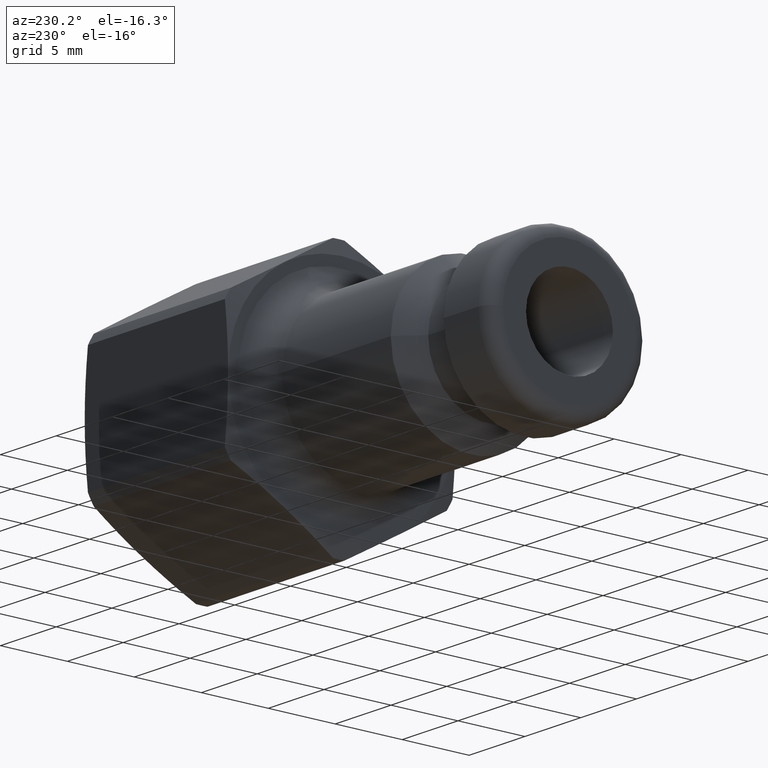
[diagram: clean part render]
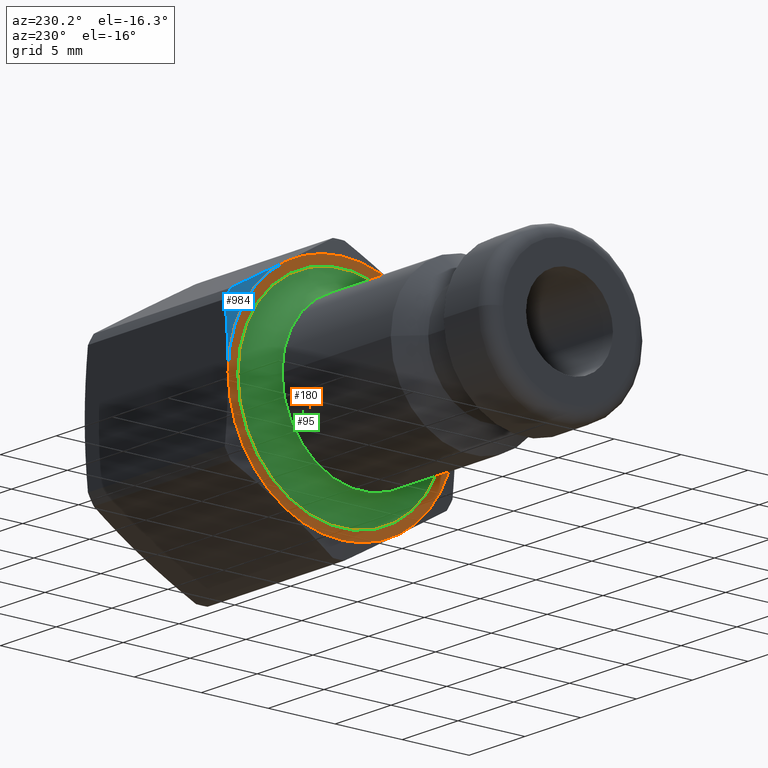
[diagram: same view with three faces highlighted in distinct colors, each labeled with its STEP entity id]
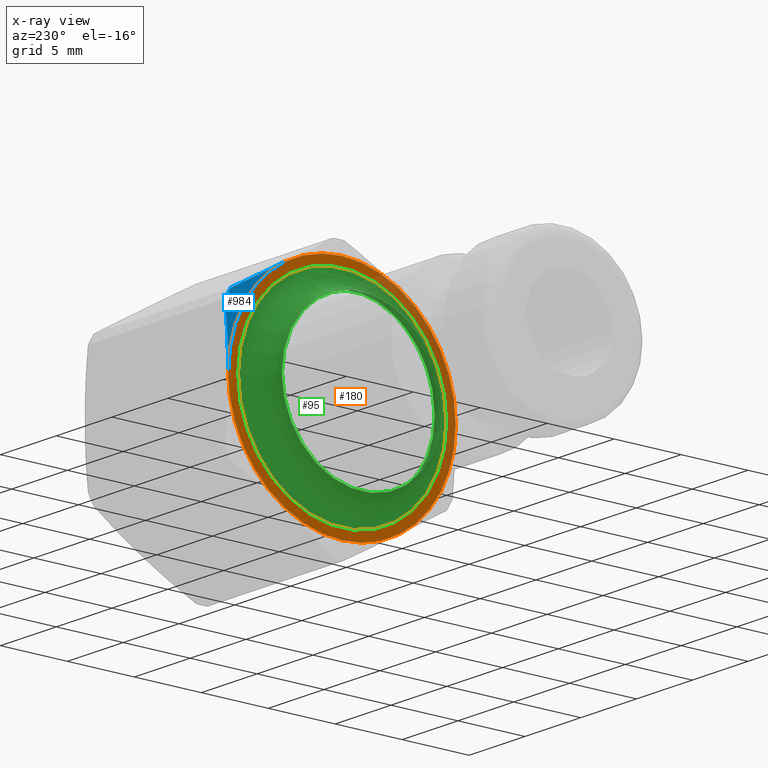
[diagram: x-ray of the same camera — body ghosted, the three highlighted faces saturated]
A machine part, auxiliary view with three faces highlighted in distinct colors.
The next image is the same camera in x-ray (body ghosted, the three faces saturated) — at least one of them is partly hidden behind the body in this view.
Their STEP definitions:

[orange] entity #180 — the highlighted planar face has unit normal (-1, 0, 0).
#84=CARTESIAN_POINT('',(20.399999999999999,7.775000000000000,-1.904326E-015));
#85=VERTEX_POINT('',#84);
#86=CARTESIAN_POINT('',(20.399999999999999,0.0,0.0));
#87=DIRECTION('',(-1.0,0.0,0.0));
#88=DIRECTION('',(0.0,-1.0,0.0));
#89=AXIS2_PLACEMENT_3D('',#86,#87,#88);
#90=CIRCLE('',#89,7.775000000000000);
#91=EDGE_CURVE('',#85,#85,#90,.T.);
#116=CARTESIAN_POINT('',(20.399999999999999,7.237500000000001,0.0));
#117=DIRECTION('',(-1.0,0.0,0.0));
#118=DIRECTION('',(0.0,0.0,1.0));
#119=AXIS2_PLACEMENT_3D('',#116,#117,#118);
#120=PLANE('',#119);
#121=CARTESIAN_POINT('',(20.399999999999999,8.500000000000000,0.0));
#122=VERTEX_POINT('',#121);
#123=CARTESIAN_POINT('',(20.399999999999999,4.250000000000001,7.361215932167728));
#124=VERTEX_POINT('',#123);
#125=CARTESIAN_POINT('',(20.399999999999999,0.0,0.0));
#126=DIRECTION('',(1.0,0.0,0.0));
#127=DIRECTION('',(0.0,1.0,0.0));
#128=AXIS2_PLACEMENT_3D('',#125,#126,#127);
#129=CIRCLE('',#128,8.500000000000000);
#130=EDGE_CURVE('',#122,#124,#129,.T.);
#131=ORIENTED_EDGE('',*,*,#130,.F.);
#132=CARTESIAN_POINT('',(20.399999999999999,4.249999999999994,-7.361215932167733));
#133=VERTEX_POINT('',#132);
#134=CARTESIAN_POINT('',(20.399999999999999,0.0,0.0));
#135=DIRECTION('',(1.0,0.0,0.0));
#136=DIRECTION('',(0.0,1.0,0.0));
#137=AXIS2_PLACEMENT_3D('',#134,#135,#136);
#138=CIRCLE('',#137,8.500000000000000);
#139=EDGE_CURVE('',#133,#122,#138,.T.);
#140=ORIENTED_EDGE('',*,*,#139,.F.);
#141=CARTESIAN_POINT('',(20.399999999999999,-4.250000000000004,-7.361215932167728));
#142=VERTEX_POINT('',#141);
#143=CARTESIAN_POINT('',(20.399999999999999,0.0,0.0));
#144=DIRECTION('',(1.0,0.0,0.0));
#145=DIRECTION('',(0.0,1.0,0.0));
#146=AXIS2_PLACEMENT_3D('',#143,#144,#145);
#147=CIRCLE('',#146,8.500000000000000);
#148=EDGE_CURVE('',#142,#133,#147,.T.);
#149=ORIENTED_EDGE('',*,*,#148,.F.);
#150=CARTESIAN_POINT('',(20.399999999999999,-8.500000000000000,1.415534E-015));
#151=VERTEX_POINT('',#150);
#152=CARTESIAN_POINT('',(20.399999999999999,0.0,0.0));
#153=DIRECTION('',(1.0,0.0,0.0));
#154=DIRECTION('',(0.0,1.0,0.0));
#155=AXIS2_PLACEMENT_3D('',#152,#153,#154);
#156=CIRCLE('',#155,8.500000000000000);
#157=EDGE_CURVE('',#151,#142,#156,.T.);
#158=ORIENTED_EDGE('',*,*,#157,.F.);
#159=CARTESIAN_POINT('',(20.399999999999999,-4.249999999999998,7.361215932167731));
#160=VERTEX_POINT('',#159);
#161=CARTESIAN_POINT('',(20.399999999999999,0.0,0.0));
#162=DIRECTION('',(1.0,0.0,0.0));
#163=DIRECTION('',(0.0,1.0,0.0));
#164=AXIS2_PLACEMENT_3D('',#161,#162,#163);
#165=CIRCLE('',#164,8.500000000000000);
#166=EDGE_CURVE('',#160,#151,#165,.T.);
#167=ORIENTED_EDGE('',*,*,#166,.F.);
#168=CARTESIAN_POINT('',(20.399999999999999,0.0,0.0));
#169=DIRECTION('',(1.0,0.0,0.0));
#170=DIRECTION('',(0.0,1.0,0.0));
#171=AXIS2_PLACEMENT_3D('',#168,#169,#170);
#172=CIRCLE('',#171,8.500000000000000);
#173=EDGE_CURVE('',#124,#160,#172,.T.);
#174=ORIENTED_EDGE('',*,*,#173,.F.);
#175=EDGE_LOOP('',(#131,#140,#149,#158,#167,#174));
#176=FACE_OUTER_BOUND('',#175,.T.);
#177=ORIENTED_EDGE('',*,*,#91,.F.);
#178=EDGE_LOOP('',(#177));
#179=FACE_BOUND('',#178,.T.);
#180=ADVANCED_FACE('',(#176,#179),#120,.T.);

[blue] entity #984 — the highlighted conical surface has half-angle 75 deg.
#121=CARTESIAN_POINT('',(20.399999999999999,8.500000000000000,0.0));
#122=VERTEX_POINT('',#121);
#123=CARTESIAN_POINT('',(20.399999999999999,4.250000000000001,7.361215932167728));
#124=VERTEX_POINT('',#123);
#125=CARTESIAN_POINT('',(20.399999999999999,0.0,0.0));
#126=DIRECTION('',(1.0,0.0,0.0));
#127=DIRECTION('',(0.0,1.0,0.0));
#128=AXIS2_PLACEMENT_3D('',#125,#126,#127);
#129=CIRCLE('',#128,8.500000000000000);
#130=EDGE_CURVE('',#122,#124,#129,.T.);
#635=CARTESIAN_POINT('',(20.688045381863454,8.067455795421868,5.157206801061416));
#636=VERTEX_POINT('',#635);
#643=CARTESIAN_POINT('',(20.400000000000006,4.250000000000002,7.361215932167728));
#644=CARTESIAN_POINT('',(20.399999999999999,6.045207427999269,6.324752440361136));
#645=CARTESIAN_POINT('',(20.688045381863454,8.067455795421900,5.157206801061398));
#653=(BOUNDED_CURVE()B_SPLINE_CURVE(2,(#643,#644,#645),.UNSPECIFIED.,.F.,.U.)B_SPLINE_CURVE_WITH_KNOTS((3,3),(0.441955310884675,0.883910621769349),.UNSPECIFIED.)CURVE()GEOMETRIC_REPRESENTATION_ITEM()RATIONAL_B_SPLINE_CURVE((1.0,1.031133014754854,1.0))REPRESENTATION_ITEM(''));
#654=EDGE_CURVE('',#124,#636,#653,.T.);
#865=CARTESIAN_POINT('',(20.688045381863454,8.500000000000000,4.408018262212623));
#866=VERTEX_POINT('',#865);
#873=CARTESIAN_POINT('',(20.688045381863454,0.0,0.0));
#874=DIRECTION('',(1.0,0.0,0.0));
#875=DIRECTION('',(0.0,1.0,0.0));
#876=AXIS2_PLACEMENT_3D('',#873,#874,#875);
#877=CIRCLE('',#876,9.574999999999999);
#878=EDGE_CURVE('',#866,#636,#877,.T.);
#961=CARTESIAN_POINT('',(20.544022690931726,0.0,0.0));
#962=DIRECTION('',(1.0,0.0,0.0));
#963=DIRECTION('',(0.0,1.0,0.0));
#964=AXIS2_PLACEMENT_3D('',#961,#962,#963);
#965=CONICAL_SURFACE('',#964,9.037500000000001,75.000000000000185);
#966=ORIENTED_EDGE('',*,*,#654,.T.);
#967=ORIENTED_EDGE('',*,*,#878,.F.);
#968=CARTESIAN_POINT('',(20.688045381863454,8.500000000000000,4.408018262212660));
#969=CARTESIAN_POINT('',(20.400000000000009,8.500000000000000,2.072926983613211));
#970=CARTESIAN_POINT('',(20.400000000000006,8.500000000000000,0.0));
#978=(BOUNDED_CURVE()B_SPLINE_CURVE(2,(#968,#969,#970),.UNSPECIFIED.,.F.,.U.)B_SPLINE_CURVE_WITH_KNOTS((3,3),(0.0,0.441955310884675),.UNSPECIFIED.)CURVE()GEOMETRIC_REPRESENTATION_ITEM()RATIONAL_B_SPLINE_CURVE((1.0,1.031133014754914,1.0))REPRESENTATION_ITEM(''));
#979=EDGE_CURVE('',#866,#122,#978,.T.);
#980=ORIENTED_EDGE('',*,*,#979,.T.);
#981=ORIENTED_EDGE('',*,*,#130,.T.);
#982=EDGE_LOOP('',(#966,#967,#980,#981));
#983=FACE_OUTER_BOUND('',#982,.T.);
#984=ADVANCED_FACE('',(#983),#965,.T.);

[green] entity #95 — the highlighted toroidal blend (fillet) surface has major radius 7.775 mm and minor (blend) radius 1.8 mm.
#68=CARTESIAN_POINT('',(18.600000000000001,0.0,0.0));
#69=DIRECTION('',(1.0,0.0,0.0));
#70=DIRECTION('',(0.0,0.0,-1.0));
#71=AXIS2_PLACEMENT_3D('',#68,#69,#70);
#72=TOROIDAL_SURFACE('',#71,7.775000000000000,1.800000000000000);
#73=CARTESIAN_POINT('',(18.600000000000001,5.975000000000001,0.0));
#74=VERTEX_POINT('',#73);
#75=CARTESIAN_POINT('',(18.600000000000001,0.0,0.0));
#76=DIRECTION('',(1.0,0.0,0.0));
#77=DIRECTION('',(0.0,-1.0,0.0));
#78=AXIS2_PLACEMENT_3D('',#75,#76,#77);
#79=CIRCLE('',#78,5.975000000000001);
#80=EDGE_CURVE('',#74,#74,#79,.T.);
#81=ORIENTED_EDGE('',*,*,#80,.T.);
#82=EDGE_LOOP('',(#81));
#83=FACE_OUTER_BOUND('',#82,.T.);
#84=CARTESIAN_POINT('',(20.399999999999999,7.775000000000000,-1.904326E-015));
#85=VERTEX_POINT('',#84);
#86=CARTESIAN_POINT('',(20.399999999999999,0.0,0.0));
#87=DIRECTION('',(-1.0,0.0,0.0));
#88=DIRECTION('',(0.0,-1.0,0.0));
#89=AXIS2_PLACEMENT_3D('',#86,#87,#88);
#90=CIRCLE('',#89,7.775000000000000);
#91=EDGE_CURVE('',#85,#85,#90,.T.);
#92=ORIENTED_EDGE('',*,*,#91,.T.);
#93=EDGE_LOOP('',(#92));
#94=FACE_BOUND('',#93,.T.);
#95=ADVANCED_FACE('',(#83,#94),#72,.F.);